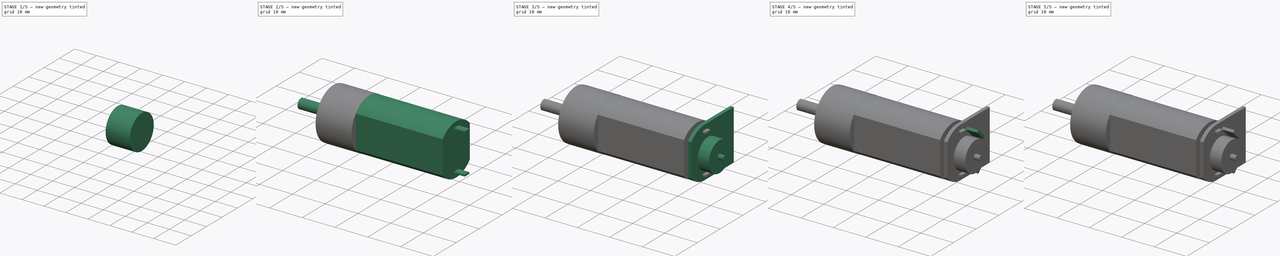
[diagram: build sequence overview — one tinted view per stage of 5, left to right]
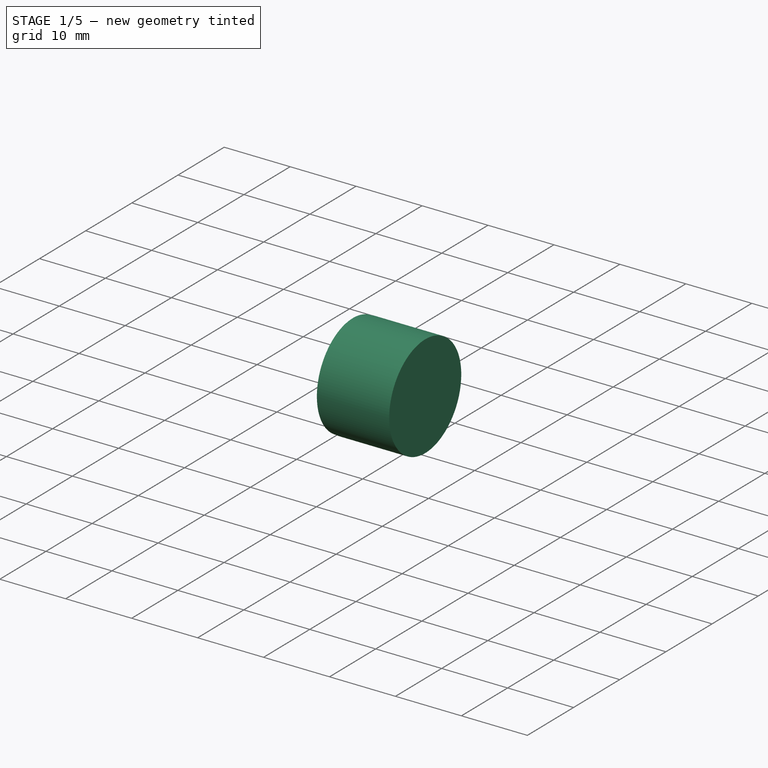
[diagram: stage 1 of 5 — iso view after this stage's code; geometry added in this stage tinted green]
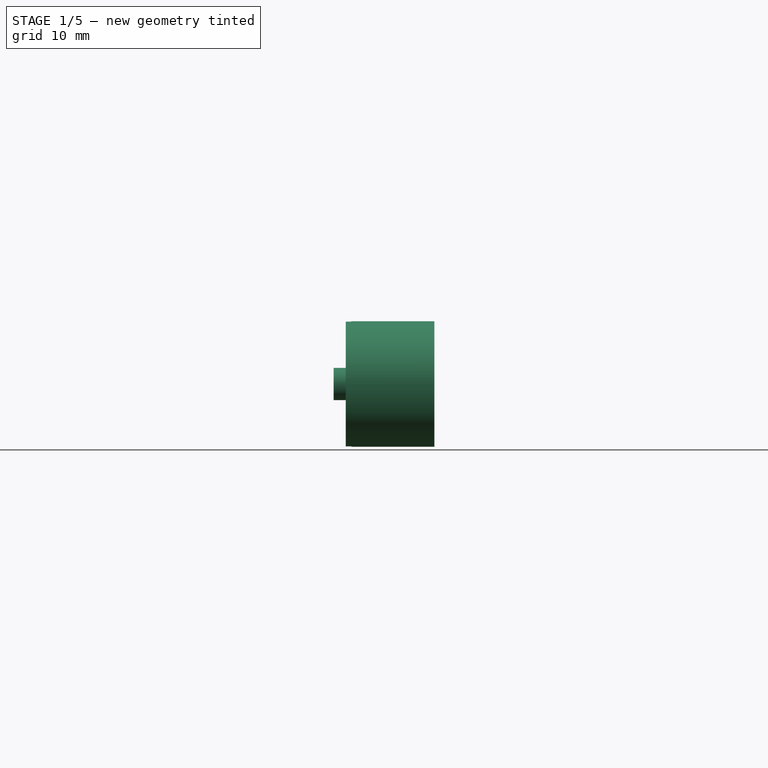
[diagram: stage 1 of 5 — front view after this stage's code; geometry added in this stage tinted green]
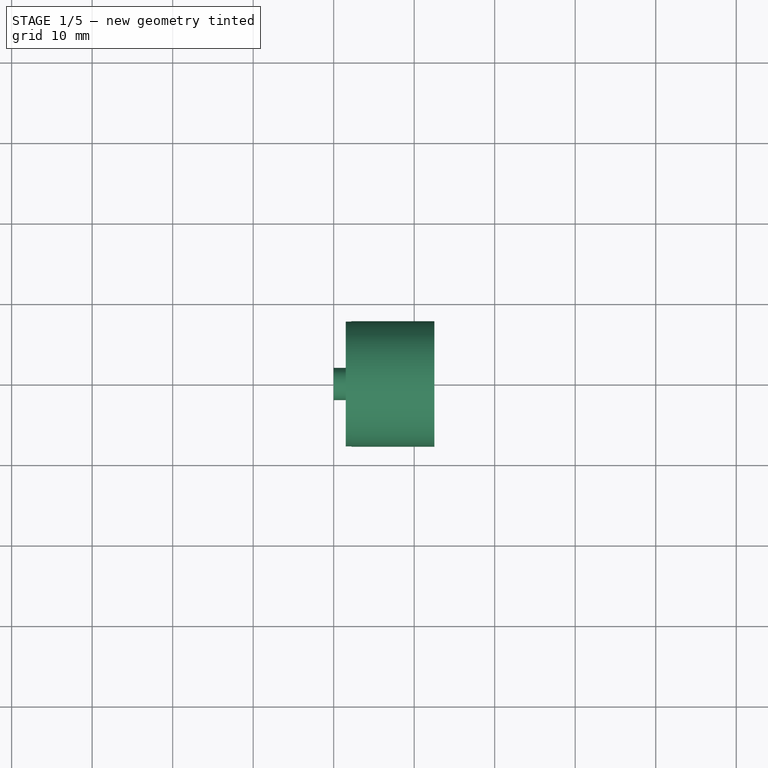
[diagram: stage 1 of 5 — top view after this stage's code; geometry added in this stage tinted green]
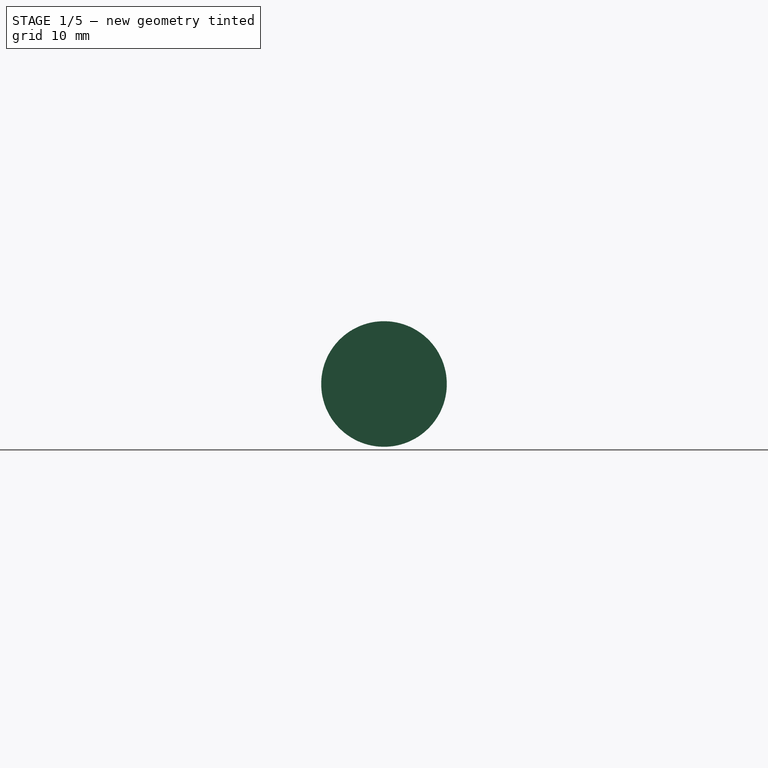
[diagram: stage 1 of 5 — right view after this stage's code; geometry added in this stage tinted green]
FCSTD DOCUMENT  (FreeCAD 0.17R13541 (Git))
Label: motor_CHR-160-050
License: All rights reserved
LicenseURL: http://en.wikipedia.org/wiki/All_rights_reserved
objects: Sketcher::SketchObject×12, PartDesign::Pad×12, PartDesign::Pocket×4, Part::Part2DObjectPython×2, PartDesign::Body×1
note: 47 computed .brp shape members not serialized (recipe doc carries the construction recipe); baked Part::Feature solids carry a one-line shape summary decoded from their .brp

FEATURE [Sketcher::SketchObject] Sketch
  MapMode = 5
  Placement = pos=(0,0,0) rot=(0.57735,0.57735,0.57735;2.0944rad)
  Support = -> [YZ_Plane]
  sketch-geometry (2):
    g0: Circle CenterX=0 CenterY=0 CenterZ=0 NormalX=0 NormalY=0 NormalZ=1 AngleXU=0 Radius=1.55
    g1: Circle CenterX=0 CenterY=0 CenterZ=0 NormalX=0 NormalY=0 NormalZ=1 AngleXU=0 Radius=2
  constraints (4):
    c: Coincident(g0,g-1)
    c: Coincident(g1,g-1)
    c: Radius(g0) = 1.55
    c: Radius(g1) = 2
FEATURE [PartDesign::Pad] Pad
  Length = 1.5
  Length2 = 100
  Placement = pos=(0,0,0) rot=(0.57735,0.57735,0.57735;2.0944rad)
  Profile = -> Sketch
  Type = 0
FEATURE [Sketcher::SketchObject] Sketch001
  MapMode = 5
  Placement = pos=(1.5,0,0) rot=(0.57735,0.57735,0.57735;2.0944rad)
  Support = -> [Pad]
  sketch-geometry (4):
    g0: Circle CenterX=0 CenterY=0 CenterZ=0 NormalX=0 NormalY=0 NormalZ=1 AngleXU=0 Radius=7.75
    g1: Circle CenterX=0 CenterY=0 CenterZ=0 NormalX=0 NormalY=0 NormalZ=1 AngleXU=0 Radius=1.55
    g2: Circle CenterX=-4.5 CenterY=0 CenterZ=0 NormalX=0 NormalY=0 NormalZ=1 AngleXU=0 Radius=0.8
    g3: Circle CenterX=4.5 CenterY=0 CenterZ=0 NormalX=0 NormalY=0 NormalZ=1 AngleXU=0 Radius=0.8
  constraints (10):
    c: Coincident(g0,g-1)
    c: Radius(g0) = 7.75
    c: Coincident(g1,g-1)
    c: PointOnObject(g2,g-1)
    c: PointOnObject(g3,g-1)
    c: Radius(g2) = 0.8
    c: Equal(g2,g3)
    c: Symmetric(g2,g3,g-2)
    c: DistanceX(g2,g3) = 9
    c: Radius(g1) = 1.55
FEATURE [PartDesign::Pad] Pad001
  BaseFeature = -> Pad
  Length = 0.7
  Length2 = 100
  Placement = pos=(0,0,0) rot=(0.57735,0.57735,0.57735;2.0944rad)
  Profile = -> Sketch001
  Type = 0
FEATURE [Sketcher::SketchObject] Sketch002
  MapMode = 5
  Placement = pos=(2.2,0,0) rot=(0.57735,0.57735,0.57735;2.0944rad)
  Support = -> [Pad001]
  sketch-geometry (1):
    g0: Circle CenterX=0 CenterY=0 CenterZ=0 NormalX=0 NormalY=0 NormalZ=1 AngleXU=0 Radius=7.8
  constraints (2):
    c: Coincident(g0,g-1)
    c: Radius(g0) = 7.8
FEATURE [PartDesign::Pad] Pad002
  BaseFeature = -> Pad001
  Length = 10.3
  Length2 = 100
  Placement = pos=(0,0,0) rot=(0.57735,0.57735,0.57735;2.0944rad)
  Profile = -> Sketch002
  Type = 0
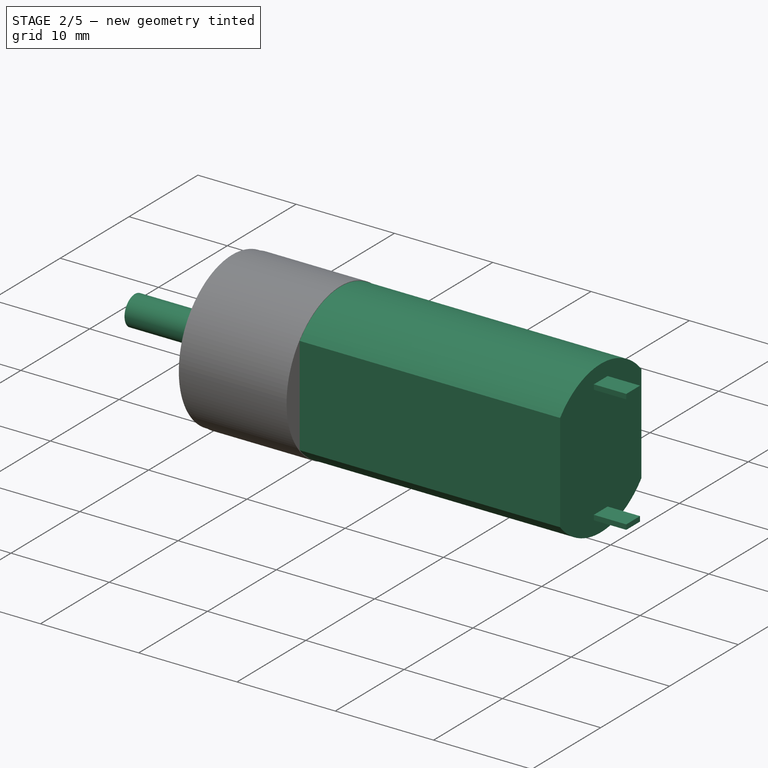
[diagram: stage 2 of 5 — iso view after this stage's code; geometry added in this stage tinted green]
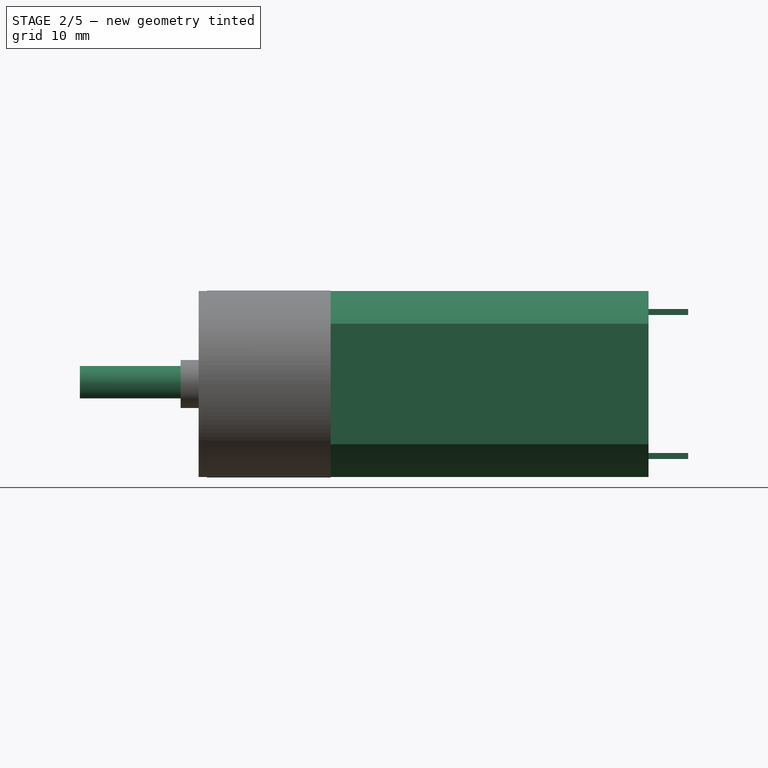
[diagram: stage 2 of 5 — front view after this stage's code; geometry added in this stage tinted green]
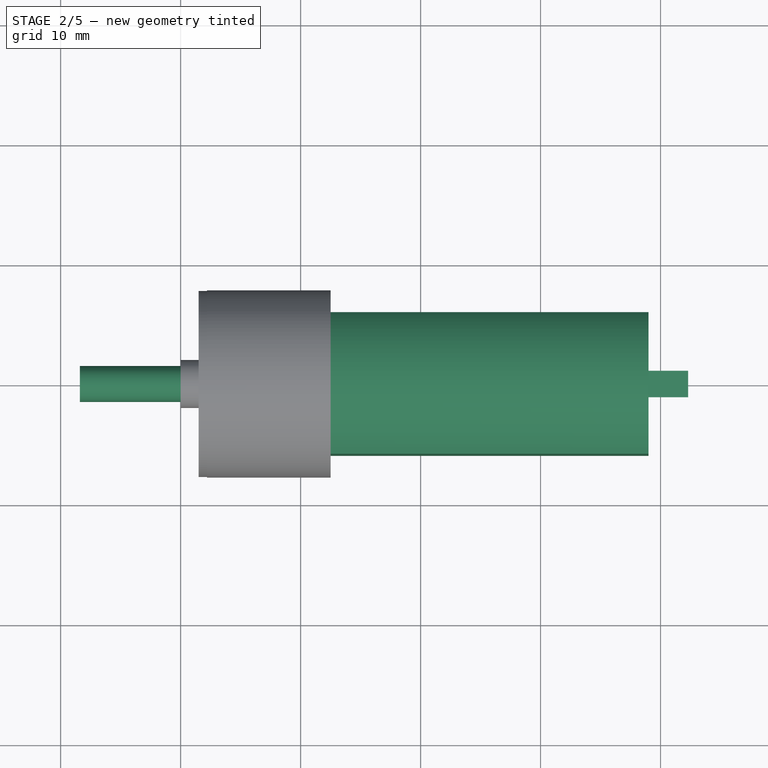
[diagram: stage 2 of 5 — top view after this stage's code; geometry added in this stage tinted green]
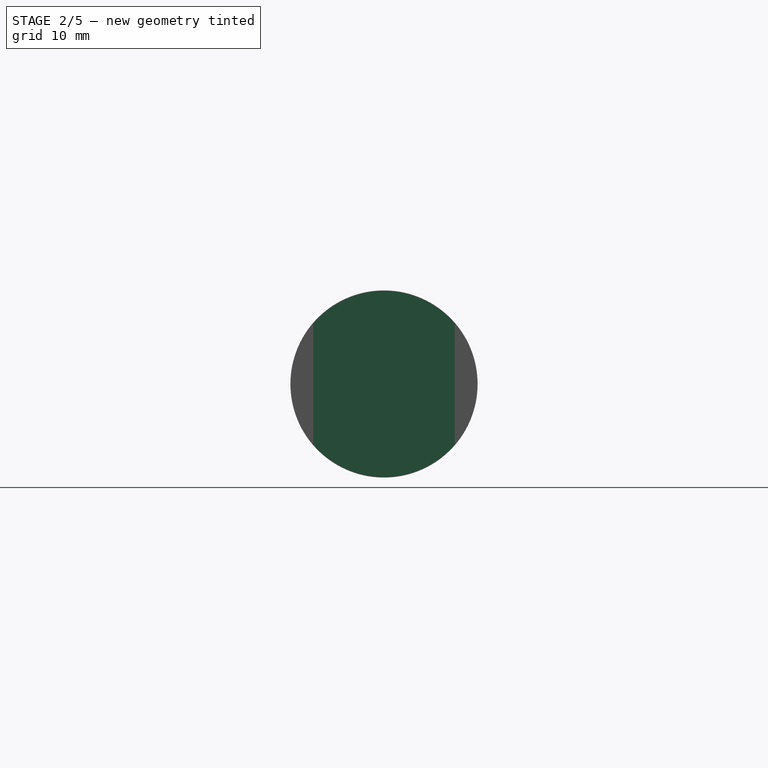
[diagram: stage 2 of 5 — right view after this stage's code; geometry added in this stage tinted green]
FEATURE [Sketcher::SketchObject] Sketch003
  MapMode = 5
  Placement = pos=(2.2,0,0) rot=(-0.57735,-0.57735,0.57735;2.0944rad)
  Support = -> [Pad002]
  sketch-geometry (2):
    g0: LineSegment StartX=-0.9 StartY=1.2 StartZ=0 EndX=0.9 EndY=1.2 EndZ=0
    g1: ArcOfCircle CenterX=0 CenterY=0 CenterZ=0 NormalX=0 NormalY=0 NormalZ=1 AngleXU=0 Radius=1.5 StartAngle=2.2143 EndAngle=7.21048
  constraints (6):
    c: Horizontal(g0)
    c: Coincident(g1,g-1)
    c: Coincident(g1,g0)
    c: Coincident(g1,g0)
    c: Radius(g1) = 1.5
    c: DistanceY(g0) = 1.2
FEATURE [PartDesign::Pad] Pad003
  BaseFeature = -> Pad002
  Length = 10.6
  Length2 = 100
  Placement = pos=(0,0,0) rot=(0.57735,0.57735,0.57735;2.0944rad)
  Profile = -> Sketch003
  Type = 0
FEATURE [Sketcher::SketchObject] Sketch004
  MapMode = 5
  Placement = pos=(12.5,0,0) rot=(0.57735,0.57735,0.57735;2.0944rad)
  Support = -> [Pad003]
  sketch-geometry (6):
    g0: LineSegment [constr] StartX=-5.9 StartY=5.02519 StartZ=0 EndX=5.9 EndY=5.02519 EndZ=0
    g1: LineSegment StartX=5.9 StartY=5.02519 StartZ=0 EndX=5.9 EndY=-5.02519 EndZ=0
    g2: LineSegment [constr] StartX=5.9 StartY=-5.02519 StartZ=0 EndX=-5.9 EndY=-5.02519 EndZ=0
    g3: LineSegment StartX=-5.9 StartY=-5.02519 StartZ=0 EndX=-5.9 EndY=5.02519 EndZ=0
    g4: ArcOfCircle CenterX=0 CenterY=0 CenterZ=0 NormalX=0 NormalY=0 NormalZ=1 AngleXU=0 Radius=7.75 StartAngle=0.705496 EndAngle=2.4361
    g5: ArcOfCircle CenterX=0 CenterY=0 CenterZ=0 NormalX=0 NormalY=0 NormalZ=1 AngleXU=0 Radius=7.75 StartAngle=3.84709 EndAngle=5.57769
  constraints (17):
    c: Coincident(g0,g1)
    c: Coincident(g1,g2)
    c: Coincident(g2,g3)
    c: Coincident(g3,g0)
    c: Horizontal(g0)
    c: Horizontal(g2)
    c: Vertical(g1)
    c: Vertical(g3)
    c: Coincident(g4,g-1)
    c: Coincident(g4,g0)
    c: Coincident(g4,g0)
    c: Coincident(g5,g-1)
    c: Coincident(g5,g2)
    c: Coincident(g5,g1)
    c: Radius(g4) = 7.75
    c: Equal(g4,g5)
    c: DistanceX(g2,g2) = 11.8
FEATURE [PartDesign::Pad] Pad004
  BaseFeature = -> Pad003
  Length = 26.5
  Length2 = 100
  Placement = pos=(0,0,0) rot=(0.57735,0.57735,0.57735;2.0944rad)
  Profile = -> Sketch004
  Type = 0
FEATURE [Sketcher::SketchObject] Sketch005
  MapMode = 5
  Placement = pos=(39,0,0) rot=(0.57735,0.57735,0.57735;2.0944rad)
  Support = -> [Pad004]
  sketch-geometry (8):
    g0: LineSegment StartX=-1 StartY=6.25 StartZ=0 EndX=1 EndY=6.25 EndZ=0
    g1: LineSegment StartX=1 StartY=6.25 StartZ=0 EndX=1 EndY=5.75 EndZ=0
    g2: LineSegment StartX=1 StartY=5.75 StartZ=0 EndX=-1 EndY=5.75 EndZ=0
    g3: LineSegment StartX=-1 StartY=5.75 StartZ=0 EndX=-1 EndY=6.25 EndZ=0
    g4: LineSegment StartX=-1 StartY=-5.75 StartZ=0 EndX=1 EndY=-5.75 EndZ=0
    g5: LineSegment StartX=1 StartY=-5.75 StartZ=0 EndX=1 EndY=-6.25 EndZ=0
    g6: LineSegment StartX=1 StartY=-6.25 StartZ=0 EndX=-1 EndY=-6.25 EndZ=0
    g7: LineSegment StartX=-1 StartY=-6.25 StartZ=0 EndX=-1 EndY=-5.75 EndZ=0
  constraints (23):
    c: Coincident(g0,g1)
    c: Coincident(g1,g2)
    c: Coincident(g2,g3)
    c: Coincident(g3,g0)
    c: Horizontal(g0)
    c: Horizontal(g2)
    c: Vertical(g1)
    c: Vertical(g3)
    c: Coincident(g4,g5)
    c: Coincident(g5,g6)
    c: Coincident(g6,g7)
    c: Coincident(g7,g4)
    c: Horizontal(g4)
    c: Horizontal(g6)
    c: Vertical(g5)
    c: Vertical(g7)
    c: Symmetric(g1,g2,g-2)
    c: Symmetric(g4,g1,g-1)
    c: Equal(g3,g7)
    c: DistanceY(g5,g1) = 12
    c: DistanceY(g1,g1) = 0.5
    c: DistanceX(g0,g0) = 2
    c: Equal(g6,g2)
FEATURE [PartDesign::Pad] Pad005
  BaseFeature = -> Pad004
  Length = 3.3
  Length2 = 100
  Placement = pos=(0,0,0) rot=(0.57735,0.57735,0.57735;2.0944rad)
  Profile = -> Sketch005
  Type = 0
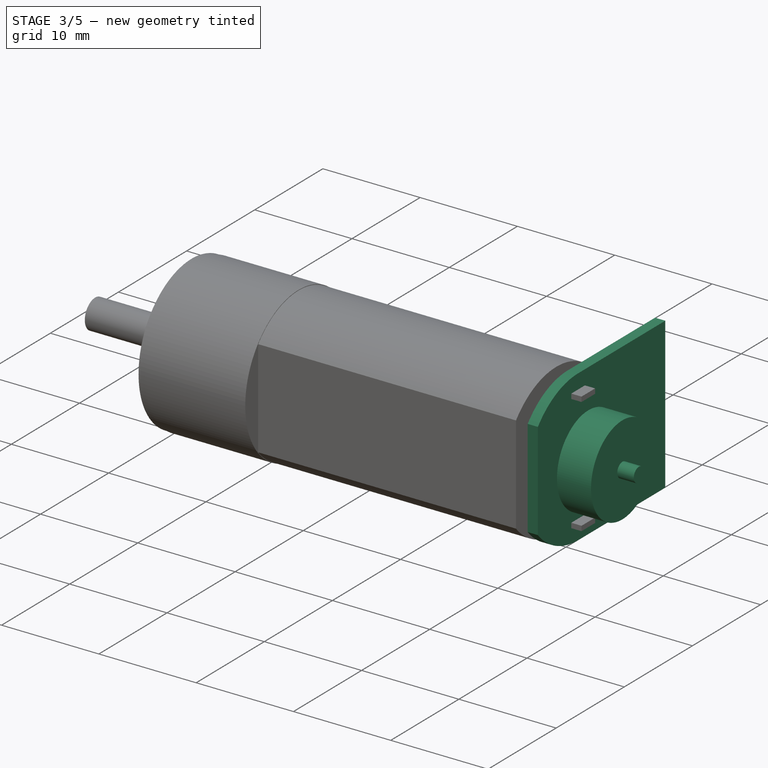
[diagram: stage 3 of 5 — iso view after this stage's code; geometry added in this stage tinted green]
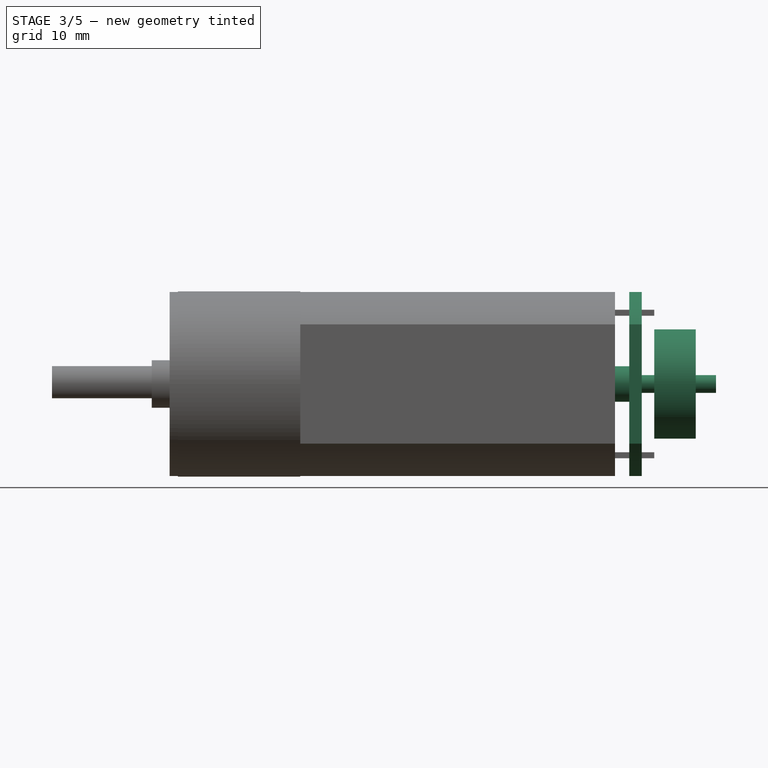
[diagram: stage 3 of 5 — front view after this stage's code; geometry added in this stage tinted green]
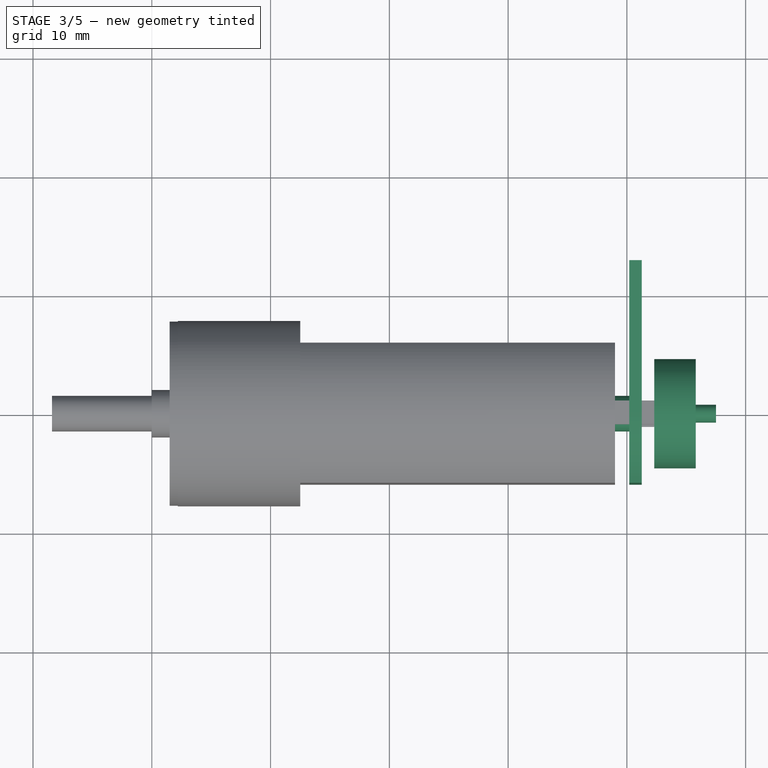
[diagram: stage 3 of 5 — top view after this stage's code; geometry added in this stage tinted green]
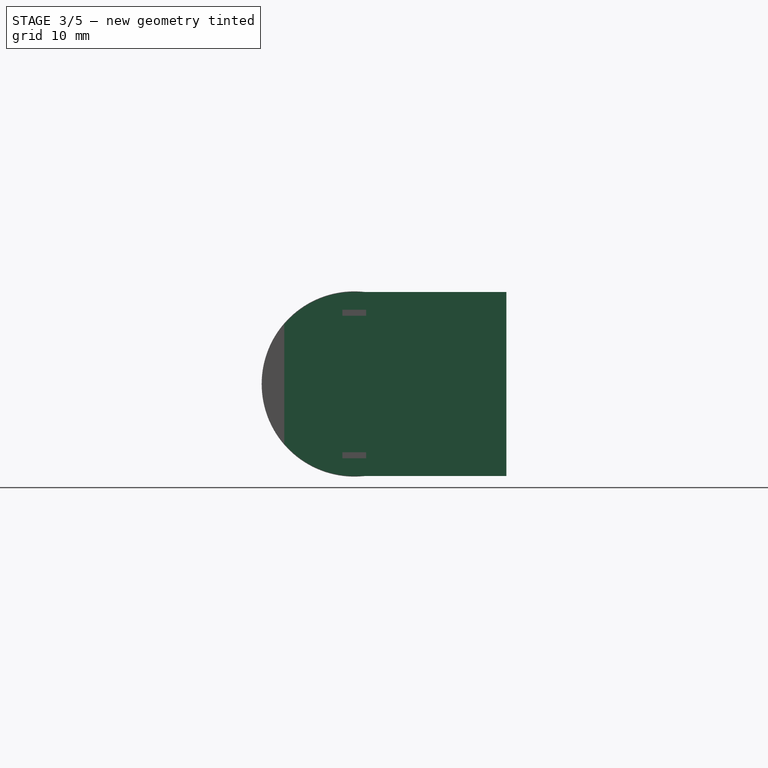
[diagram: stage 3 of 5 — right view after this stage's code; geometry added in this stage tinted green]
FEATURE [Sketcher::SketchObject] Sketch006
  MapMode = 5
  Placement = pos=(39,0,0) rot=(0.57735,0.57735,0.57735;2.0944rad)
  Support = -> [Pad005]
  sketch-geometry (1):
    g0: Circle CenterX=0 CenterY=0 CenterZ=0 NormalX=0 NormalY=0 NormalZ=1 AngleXU=0 Radius=0.75
  constraints (2):
    c: Coincident(g0,g-1)
    c: Radius(g0) = 0.75
FEATURE [PartDesign::Pad] Pad006
  BaseFeature = -> Pad005
  Length = 8.5
  Length2 = 100
  Placement = pos=(0,0,0) rot=(0.57735,0.57735,0.57735;2.0944rad)
  Profile = -> Sketch006
  Type = 0
FEATURE [Sketcher::SketchObject] Sketch008
  MapMode = 5
  Placement = pos=(39,0,0) rot=(0.57735,0.57735,0.57735;2.0944rad)
  Support = -> [Pad006]
  sketch-geometry (2):
    g0: Circle CenterX=0 CenterY=0 CenterZ=0 NormalX=0 NormalY=0 NormalZ=1 AngleXU=0 Radius=1
    g1: Circle CenterX=0 CenterY=0 CenterZ=0 NormalX=0 NormalY=0 NormalZ=1 AngleXU=0 Radius=1.5
  constraints (4):
    c: Coincident(g0,g-1)
    c: Coincident(g1,g-1)
    c: Radius(g0) = 1
    c: Radius(g1) = 1.5
FEATURE [PartDesign::Pad] Pad007
  BaseFeature = -> Pad006
  Length = 1.2
  Length2 = 100
  Placement = pos=(0,0,0) rot=(0.57735,0.57735,0.57735;2.0944rad)
  Profile = -> Sketch008
  Type = 0
FEATURE [Sketcher::SketchObject] Sketch007
  MapMode = 5
  Placement = pos=(40.2,0,0) rot=(0.57735,0.57735,0.57735;2.0944rad)
  Support = -> [Pad007]
  sketch-geometry (15):
    g0: Circle CenterX=0 CenterY=0 CenterZ=0 NormalX=0 NormalY=0 NormalZ=1 AngleXU=0 Radius=1
    g1: LineSegment StartX=-5.9 StartY=5.02519 StartZ=0 EndX=-5.9 EndY=-5.02519 EndZ=0
    g2: LineSegment StartX=0 StartY=7.75 StartZ=0 EndX=12.8 EndY=7.75 EndZ=0
    g3: LineSegment StartX=12.8 StartY=7.75 StartZ=0 EndX=12.8 EndY=-7.75 EndZ=0
    g4: LineSegment StartX=12.8 StartY=-7.75 StartZ=0 EndX=0 EndY=-7.75 EndZ=0
    g5: ArcOfCircle CenterX=0 CenterY=0 CenterZ=0 NormalX=0 NormalY=0 NormalZ=1 AngleXU=0 Radius=7.75 StartAngle=1.5708 EndAngle=2.4361
    g6: ArcOfCircle CenterX=0 CenterY=0 CenterZ=0 NormalX=0 NormalY=0 NormalZ=1 AngleXU=0 Radius=7.75 StartAngle=3.84709 EndAngle=4.71239
    g7: LineSegment StartX=-1 StartY=6.25 StartZ=0 EndX=1 EndY=6.25 EndZ=0
    g8: LineSegment StartX=1 StartY=6.25 StartZ=0 EndX=1 EndY=5.75 EndZ=0
    g9: LineSegment StartX=1 StartY=5.75 StartZ=0 EndX=-1 EndY=5.75 EndZ=0
    g10: LineSegment StartX=-1 StartY=5.75 StartZ=0 EndX=-1 EndY=6.25 EndZ=0
    g11: LineSegment StartX=-1 StartY=-5.75 StartZ=0 EndX=1 EndY=-5.75 EndZ=0
    g12: LineSegment StartX=1 StartY=-5.75 StartZ=0 EndX=1 EndY=-6.25 EndZ=0
    g13: LineSegment StartX=1 StartY=-6.25 StartZ=0 EndX=-1 EndY=-6.25 EndZ=0
    g14: LineSegment StartX=-1 StartY=-6.25 StartZ=0 EndX=-1 EndY=-5.75 EndZ=0
  constraints (43):
    c: Coincident(g0,g-1)
    c: Vertical(g1)
    c: Horizontal(g2)
    c: Coincident(g2,g3)
    c: Vertical(g3)
    c: Coincident(g3,g4)
    c: PointOnObject(g4,g-2)
    c: Horizontal(g4)
    c: PointOnObject(g2,g-2)
    c: Coincident(g5,g-1)
    c: Coincident(g5,g2)
    c: Coincident(g5,g1)
    c: Coincident(g6,g-1)
    c: Coincident(g6,g4)
    c: Coincident(g6,g1)
    c: Equal(g5,g6)
    c: Radius(g6) = 7.75
    c: DistanceX(g1) = -5.9
    c: DistanceX(g1,g3) = 18.7
    c: Radius(g0) = 1
    c: Coincident(g7,g8)
    c: Coincident(g8,g9)
    c: Coincident(g9,g10)
    c: Coincident(g10,g7)
    c: Horizontal(g7)
    c: Horizontal(g9)
    c: Vertical(g8)
    c: Vertical(g10)
    c: Coincident(g11,g12)
    c: Coincident(g12,g13)
    c: Coincident(g13,g14)
    c: Coincident(g14,g11)
    c: Horizontal(g11)
    c: Horizontal(g13)
    c: Vertical(g12)
    c: Vertical(g14)
    c: Equal(g8,g12)
    c: Equal(g9,g11)
    c: Symmetric(g8,g11,g-1)
    c: DistanceX(g13,g13) = 2
    c: DistanceY(g12,g12) = 0.5
    c: Symmetric(g7,g7,g-2)
    c: DistanceY(g12,g8) = 12
FEATURE [PartDesign::Pad] Pad008
  BaseFeature = -> Pad007
  Length = 1.05
  Length2 = 100
  Placement = pos=(0,0,0) rot=(0.57735,0.57735,0.57735;2.0944rad)
  Profile = -> Sketch007
  Type = 0
FEATURE [Sketcher::SketchObject] Sketch009
  MapMode = 5
  Placement = pos=(42.3,0,0) rot=(0.57735,0.57735,0.57735;2.0944rad)
  Support = -> [Pad008]
  sketch-geometry (2):
    g0: Circle CenterX=0 CenterY=0 CenterZ=0 NormalX=0 NormalY=0 NormalZ=1 AngleXU=0 Radius=0.75
    g1: Circle CenterX=0 CenterY=0 CenterZ=0 NormalX=0 NormalY=0 NormalZ=1 AngleXU=0 Radius=4.6
  constraints (4):
    c: Coincident(g0,g-1)
    c: Coincident(g1,g-1)
    c: Radius(g1) = 4.6
    c: Radius(g0) = 0.75
FEATURE [PartDesign::Pad] Pad009
  BaseFeature = -> Pad008
  Length = 3.5
  Length2 = 100
  Placement = pos=(0,0,0) rot=(0.57735,0.57735,0.57735;2.0944rad)
  Profile = -> Sketch009
  Type = 0
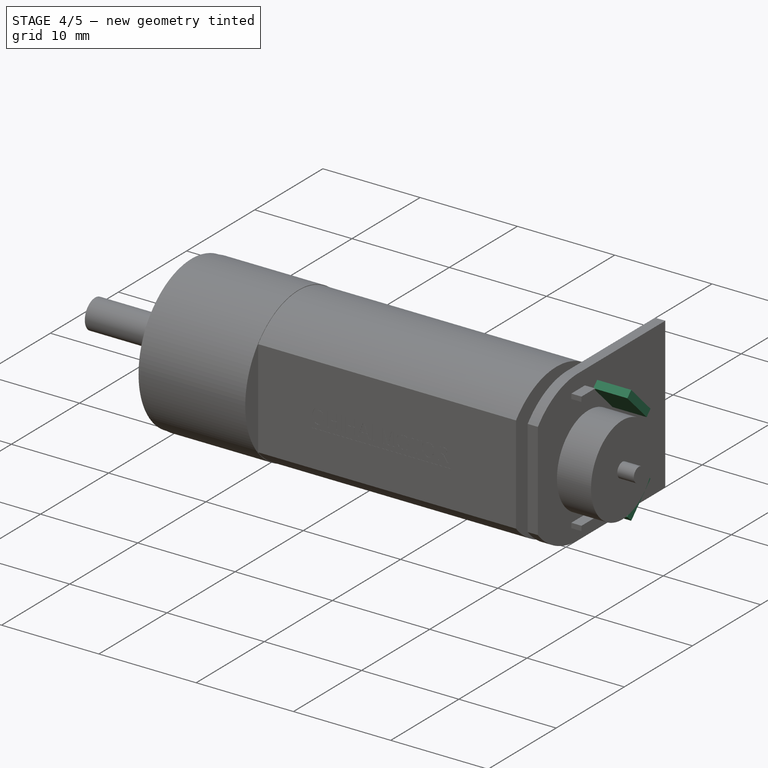
[diagram: stage 4 of 5 — iso view after this stage's code; geometry added in this stage tinted green]
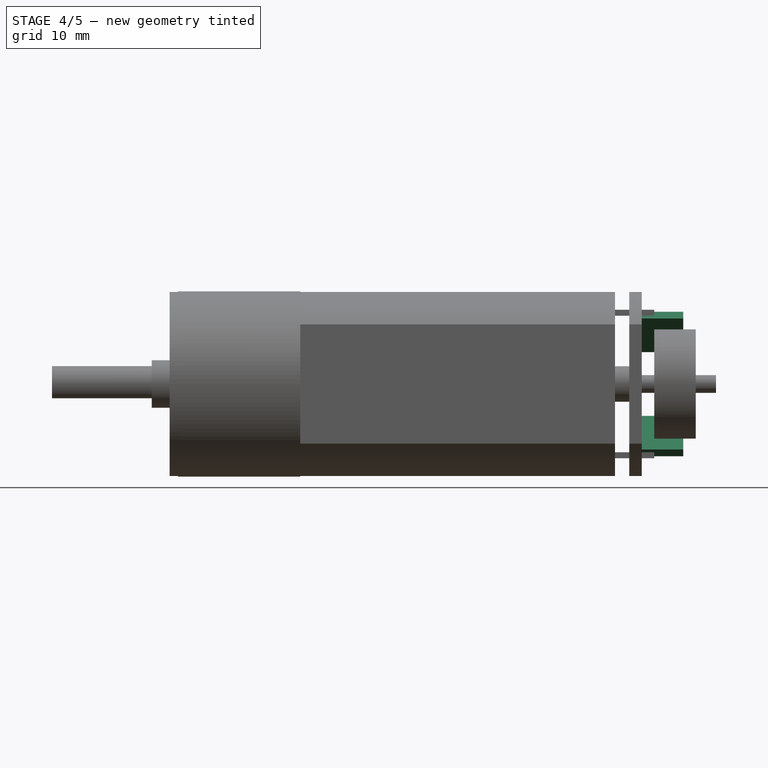
[diagram: stage 4 of 5 — front view after this stage's code; geometry added in this stage tinted green]
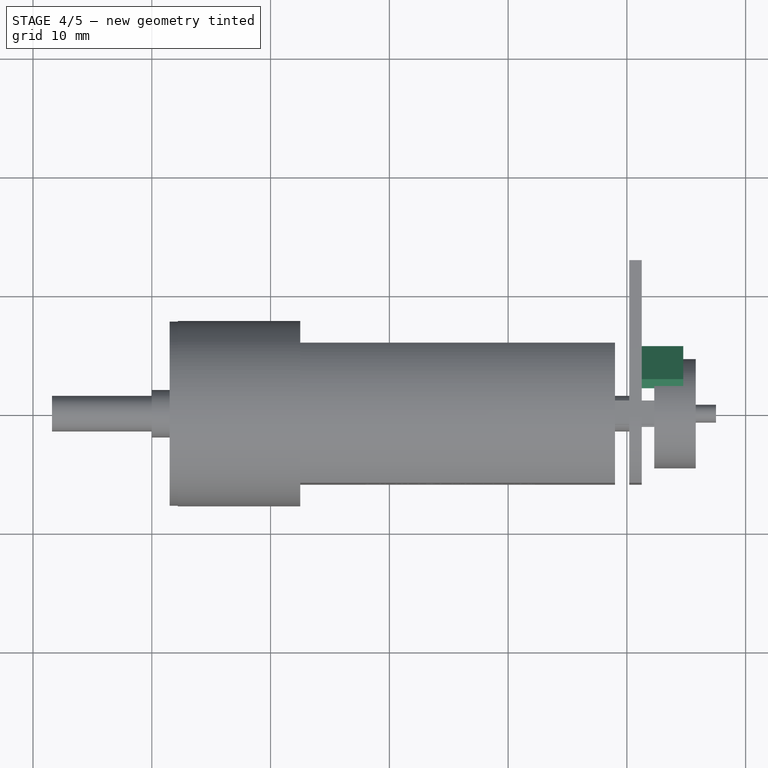
[diagram: stage 4 of 5 — top view after this stage's code; geometry added in this stage tinted green]
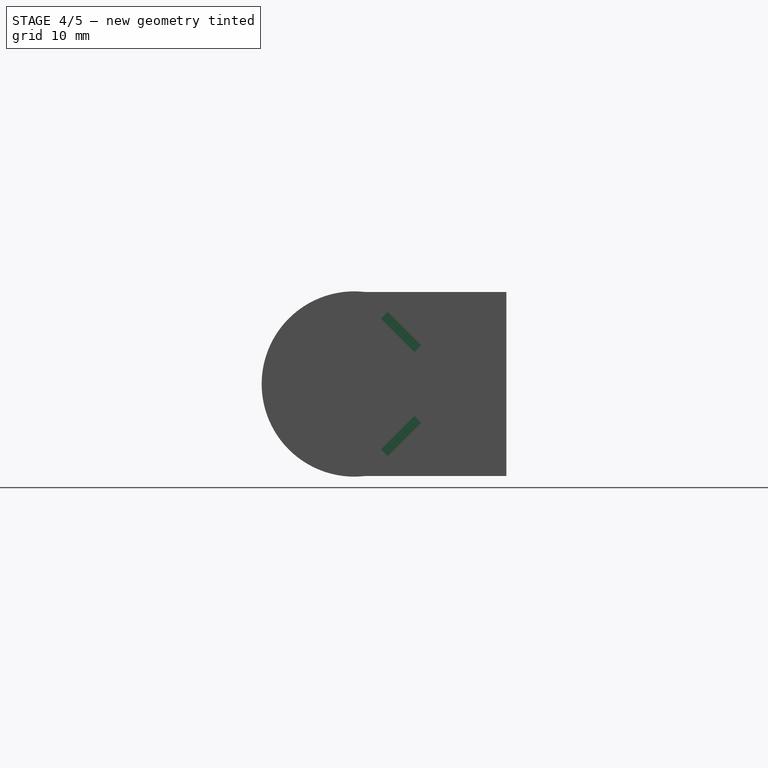
[diagram: stage 4 of 5 — right view after this stage's code; geometry added in this stage tinted green]
FEATURE [Sketcher::SketchObject] Sketch010
  MapMode = 5
  Placement = pos=(41.25,0,0) rot=(0.57735,0.57735,0.57735;2.0944rad)
  Support = -> [Pad009]
  sketch-geometry (9):
    g0: LineSegment StartX=2.23505 StartY=-5.51274 StartZ=0 EndX=2.80074 EndY=-6.07843 EndZ=0
    g1: LineSegment StartX=2.80074 StartY=-6.07843 StartZ=0 EndX=5.62917 EndY=-3.25 EndZ=0
    g2: LineSegment StartX=5.62917 StartY=-3.25 StartZ=0 EndX=5.06348 EndY=-2.68431 EndZ=0
    g3: LineSegment StartX=5.06348 StartY=-2.68431 StartZ=0 EndX=2.23505 EndY=-5.51274 EndZ=0
    g4: LineSegment StartX=2.23505 StartY=5.51274 StartZ=0 EndX=2.80074 EndY=6.07843 EndZ=0
    g5: LineSegment StartX=2.80074 StartY=6.07843 StartZ=0 EndX=5.62917 EndY=3.25 EndZ=0
    g6: LineSegment StartX=5.62917 StartY=3.25 StartZ=0 EndX=5.06348 EndY=2.68431 EndZ=0
    g7: LineSegment StartX=5.06348 StartY=2.68431 StartZ=0 EndX=2.23505 EndY=5.51274 EndZ=0
    g8: Circle [constr] CenterX=0 CenterY=0 CenterZ=0 NormalX=0 NormalY=0 NormalZ=1 AngleXU=0 Radius=6.5
  constraints (27):
    c: Coincident(g0,g1)
    c: Coincident(g1,g2)
    c: Coincident(g2,g3)
    c: Coincident(g3,g0)
    c: Coincident(g4,g5)
    c: Coincident(g5,g6)
    c: Coincident(g6,g7)
    c: Coincident(g7,g4)
    c: Perpendicular(g6,g7)
    c: Perpendicular(g7,g4)
    c: Perpendicular(g1,g0)
    c: Perpendicular(g2,g1)
    c: Perpendicular(g2,g3)
    c: Angle(g7,g3) = 1.5708
    c: Angle(g7,g-1) = 0.785398
    c: Equal(g6,g4)
    c: Equal(g2,g6)
    c: Equal(g6,g0)
    c: Equal(g5,g1)
    c: Distance(g1) = 4
    c: Distance(g2) = 0.8
    c: Coincident(g8,g-1)
    c: Radius(g8) = 6.5
    c: PointOnObject(g1,g8)
    c: PointOnObject(g5,g8)
    c: Symmetric(g5,g1,g-1)
    c: DistanceY(g1,g5) = 6.5
FEATURE [PartDesign::Pad] Pad010
  BaseFeature = -> Pad009
  Length = 3.5
  Length2 = 100
  Placement = pos=(0,0,0) rot=(0.57735,0.57735,0.57735;2.0944rad)
  Profile = -> Sketch010
  Type = 0
FEATURE [Part::Part2DObjectPython] ShapeString  # Draft 2D object (typed FeaturePython)
  AttachmentOffset = pos=(0.75,18,0) rot=(0,0,1;1.5708rad)
  FontFile = <userpath>/.fonts/arial.ttf
  MapMode = 5
  Placement = pos=(18,-5.9,-0.75) rot=(1,0,0;1.5708rad)
  Size = 1.5
  String = CHIHAI MOTOR
  Support = -> [Pad010]
  Tracking = 0
FEATURE [Part::Part2DObjectPython] ShapeString001  # Draft 2D object (typed FeaturePython)
  AttachmentOffset = pos=(4,17.2,0) rot=(0,0,1;1.5708rad)
  FontFile = <userpath>/.fonts/arial.ttf
  MapMode = 5
  Placement = pos=(17.2,-5.9,-4) rot=(1,0,0;1.5708rad)
  Size = 1.35
  String = CHR-160-050-ABHL
  Support = -> [Pad010]
  Tracking = 0
FEATURE [Sketcher::SketchObject] Sketch011
  MapMode = 5
  Placement = pos=(0,-5.9,0) rot=(0.57735,0.57735,-0.57735;2.0944rad)
  Support = -> [Pad010]
  sketch-geometry (4):
    g0: LineSegment StartX=1.25 StartY=32.25 StartZ=0 EndX=1.45 EndY=32.25 EndZ=0
    g1: LineSegment StartX=1.45 StartY=32.25 StartZ=0 EndX=1.45 EndY=18 EndZ=0
    g2: LineSegment StartX=1.45 StartY=18 StartZ=0 EndX=1.25 EndY=18 EndZ=0
    g3: LineSegment StartX=1.25 StartY=18 StartZ=0 EndX=1.25 EndY=32.25 EndZ=0
  constraints (12):
    c: Coincident(g0,g1)
    c: Coincident(g1,g2)
    c: Coincident(g2,g3)
    c: Coincident(g3,g0)
    c: Horizontal(g0)
    c: Horizontal(g2)
    c: Vertical(g1)
    c: Vertical(g3)
    c: DistanceX(g2,g2) = 0.2
    c: DistanceY(g1,g1) = 14.25
    c: DistanceX(g2) = 1.25
    c: DistanceY(g2) = 18
FEATURE [PartDesign::Pad] Pad011
  BaseFeature = -> Pad010
  Length = 0.01
  Length2 = 100
  Placement = pos=(0,0,0) rot=(0.57735,0.57735,0.57735;2.0944rad)
  Profile = -> Sketch011
  Type = 0
FEATURE [PartDesign::Pocket] Pocket
  BaseFeature = -> Pad011
  Length = 0.01
  Length2 = 100
  Placement = pos=(0,0,0) rot=(0.57735,0.57735,0.57735;2.0944rad)
  Profile = -> ShapeString
  Type = 0
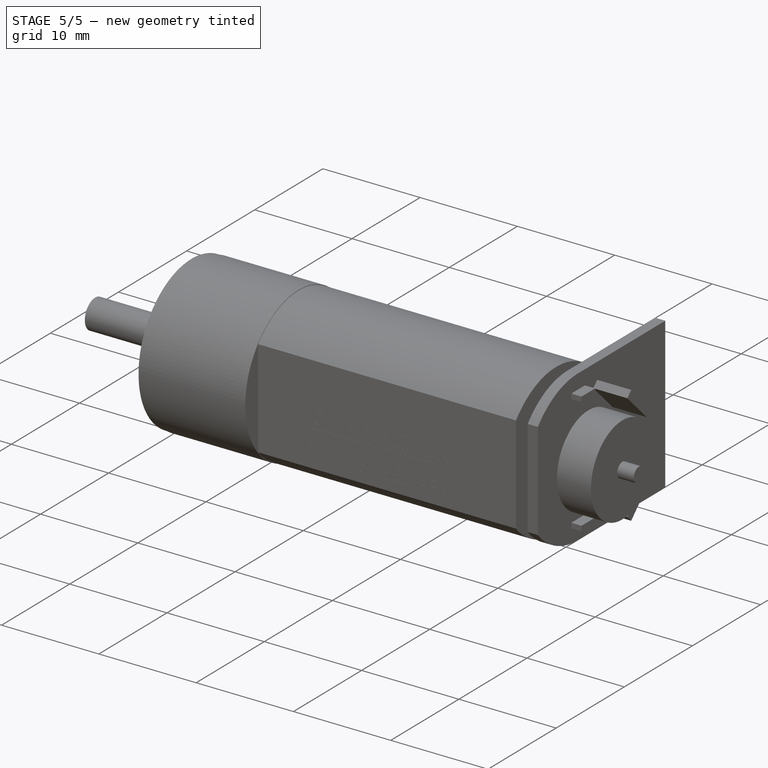
[diagram: stage 5 of 5 — iso view after this stage's code; geometry added in this stage tinted green]
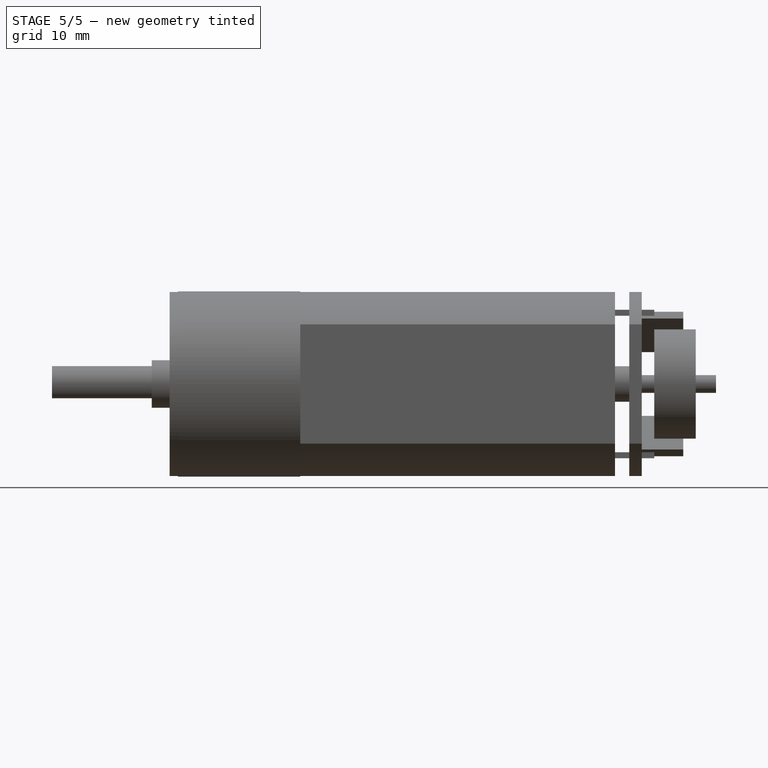
[diagram: stage 5 of 5 — front view after this stage's code; geometry added in this stage tinted green]
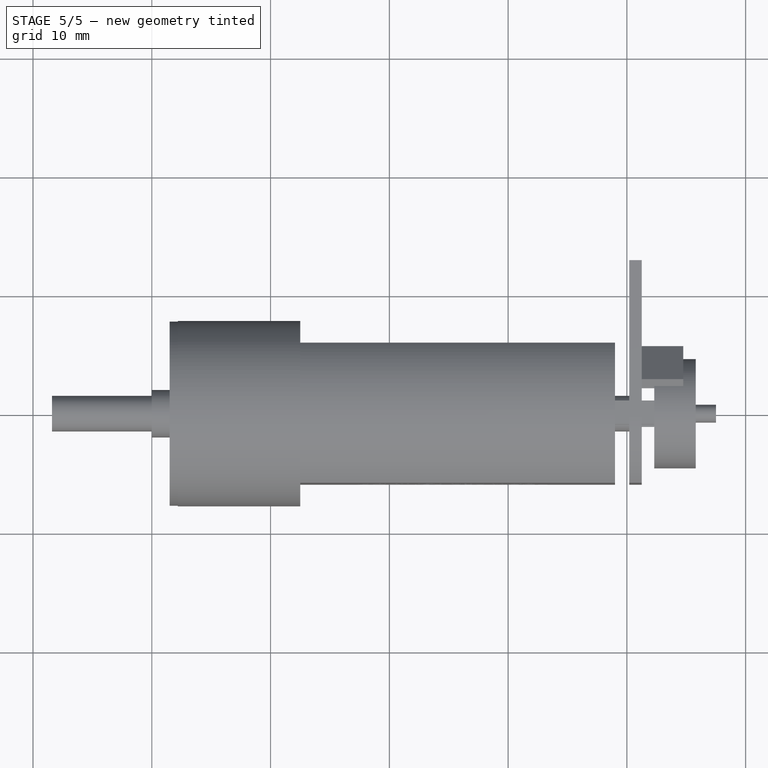
[diagram: stage 5 of 5 — top view after this stage's code; geometry added in this stage tinted green]
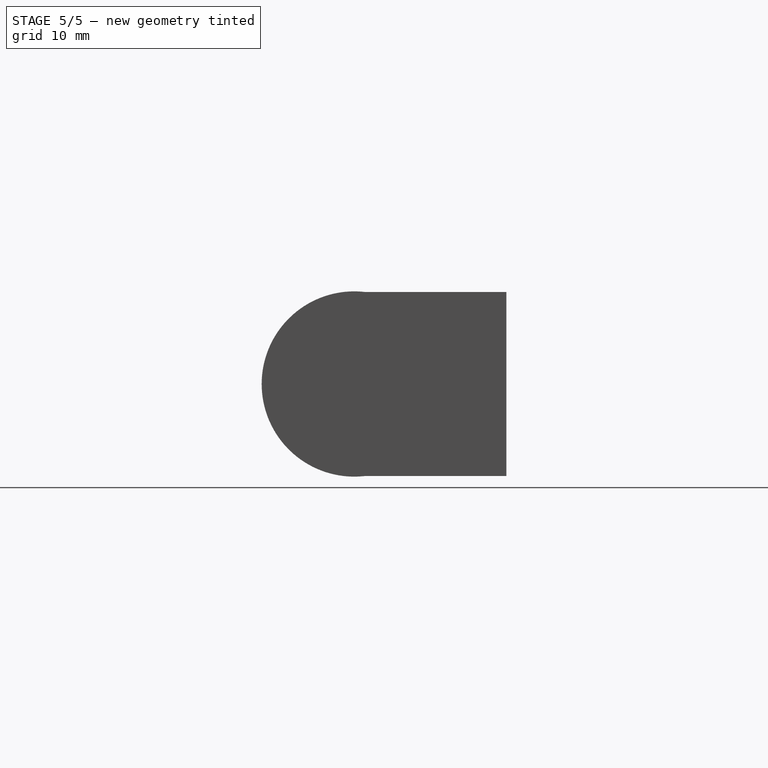
[diagram: stage 5 of 5 — right view after this stage's code; geometry added in this stage tinted green]
FEATURE [PartDesign::Pocket] Pocket001
  BaseFeature = -> Pocket
  Length = 0.01
  Length2 = 100
  Placement = pos=(0,0,0) rot=(0.57735,0.57735,0.57735;2.0944rad)
  Profile = -> ShapeString001
  Type = 0
FEATURE [PartDesign::Pocket] Pocket002
  BaseFeature = -> Pocket001
  Length = 3
  Length2 = 100
  Placement = pos=(0,0,0) rot=(0.57735,0.57735,0.57735;2.0944rad)
  Profile = -> Pocket001 [Face374]
  Type = 0
FEATURE [PartDesign::Pocket] Pocket003
  BaseFeature = -> Pocket002
  Length = 3
  Length2 = 100
  Placement = pos=(0,0,0) rot=(0.57735,0.57735,0.57735;2.0944rad)
  Profile = -> Pocket002 [Face373]
  Type = 0
FEATURE [PartDesign::Body] Body
  Group = -> [Sketch,Pad,Sketch001,Pad001,Sketch002,Pad002,Sketch003,Pad003,Sketch004,Pad004,Sketch005,Pad005,Sketch006,Pad006,Sketch008,Pad007,Sketch007,Pad008,Sketch009,Pad009,Sketch010,Pad010,Sketch011,Pad011,ShapeString,ShapeString001,Pocket,Pocket001,Pocket002,Pocket003]
  Origin = -> Origin
  Tip = -> Pocket003
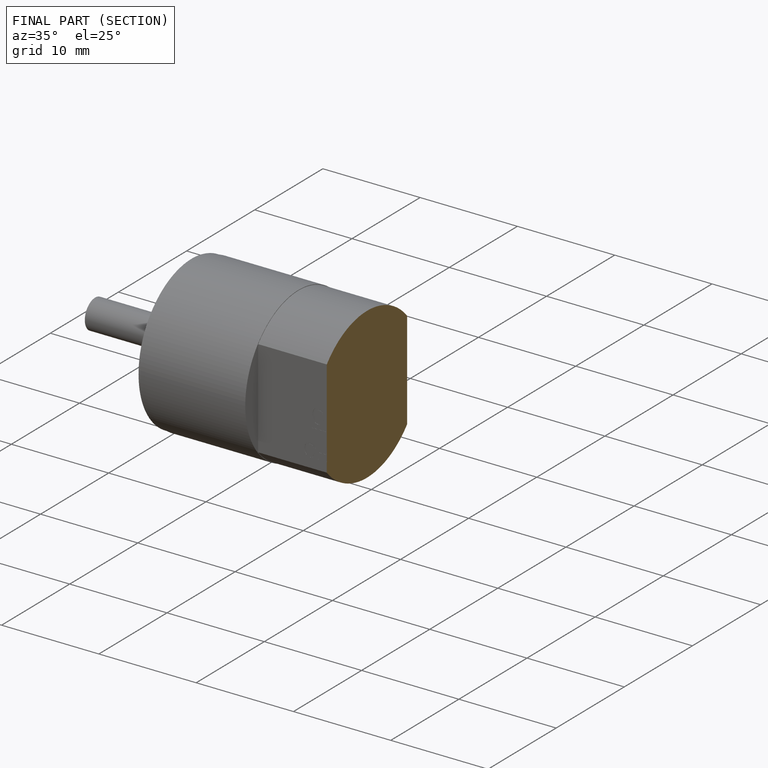
[diagram: finished part — half-section view (interior)]
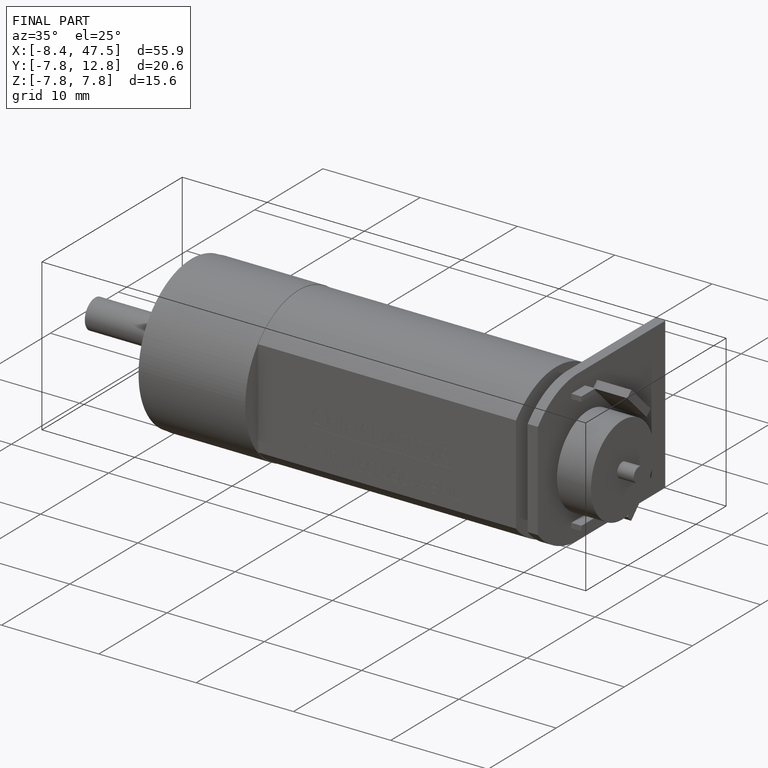
[diagram: finished part — iso view with bounding-box wireframe]
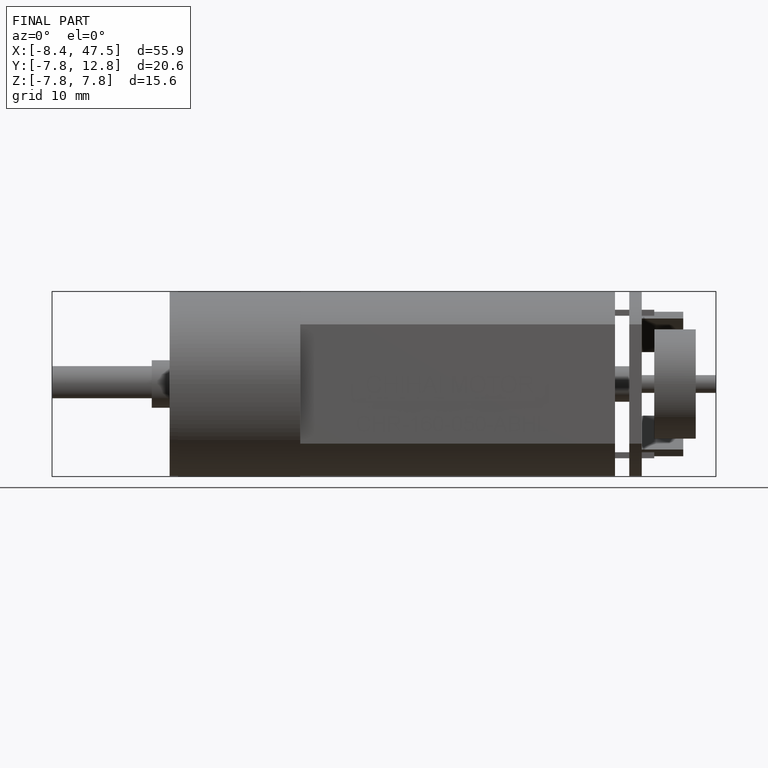
[diagram: finished part — front view with bounding-box wireframe]
